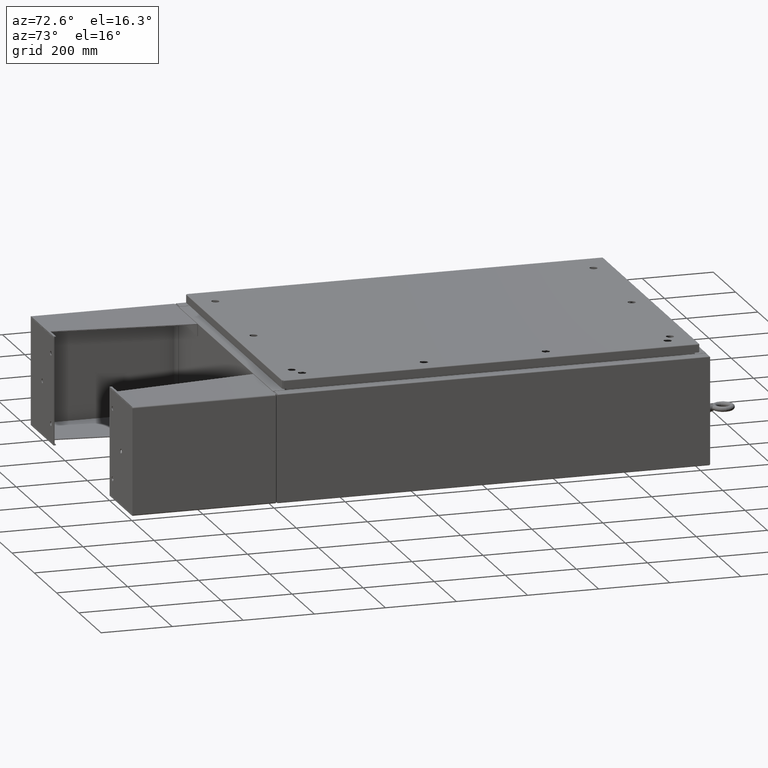
[diagram: clean part render]
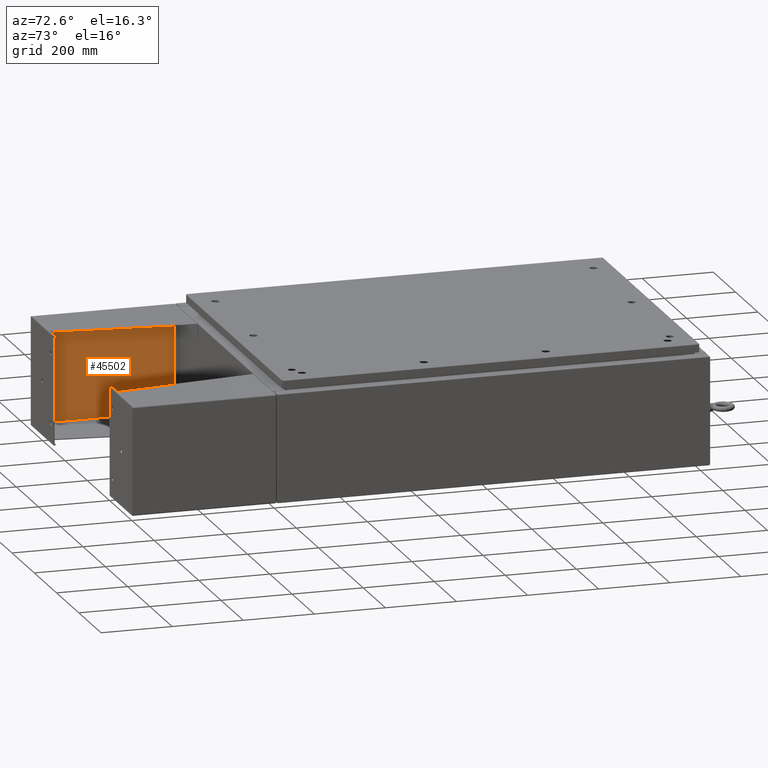
[diagram: same view with one face highlighted and labeled with its STEP entity id]
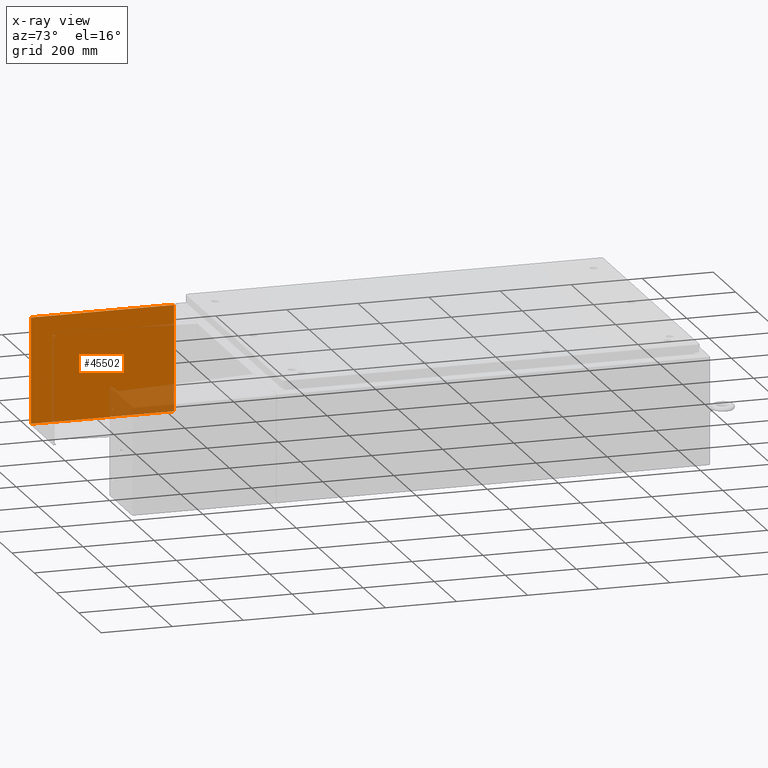
[diagram: x-ray of the same camera — body ghosted, the highlighted face saturated]
A machine part, auxiliary view. The second image highlights one B-rep face of the part: STEP entity #45502.
The next image is the same camera in x-ray: the body ghosted, the highlighted face saturated — about 13% of this face is hidden behind the body in this view.
In plain terms, the highlighted planar face has unit normal (-1, 0, -0).
Its self-contained STEP definition (entity closure, byte-faithful):
#504 = EDGE_CURVE ( 'NONE', #39817, #32584, #41386, .T. ) ;
#2457 = CARTESIAN_POINT ( 'NONE',  ( -5.857000000000000200, 7.857000000000001100, 1.365923996832131600E-016 ) ) ;
#3581 = LINE ( 'NONE', #5422, #46060 ) ;
#3782 = DIRECTION ( 'NONE',  ( -1.000000000000000000, 0.0000000000000000000, -0.0000000000000000000 ) ) ;
#4919 = ORIENTED_EDGE ( 'NONE', *, *, #504, .F. ) ;
#5138 = DIRECTION ( 'NONE',  ( 1.000000000000000000, 0.0000000000000000000, 0.0000000000000000000 ) ) ;
#5422 = CARTESIAN_POINT ( 'NONE',  ( 5.857000000000000200, 8.000000000000001800, 1.365923996832131600E-016 ) ) ;
#6649 = DIRECTION ( 'NONE',  ( 1.000000000000000000, 0.0000000000000000000, 0.0000000000000000000 ) ) ;
#12945 = ORIENTED_EDGE ( 'NONE', *, *, #46240, .T. ) ;
#13559 = AXIS2_PLACEMENT_3D ( 'NONE', #53105, #28477, #3782 ) ;
#14725 = VECTOR ( 'NONE', #5138, 39.37007874015748100 ) ;
#16925 = CARTESIAN_POINT ( 'NONE',  ( -5.857000000000000200, 7.857000000000001100, 1.365923996832131600E-016 ) ) ;
#18243 = VECTOR ( 'NONE', #33989, 39.37007874015748100 ) ;
#23170 = ORIENTED_EDGE ( 'NONE', *, *, #35680, .F. ) ;
#23732 = CARTESIAN_POINT ( 'NONE',  ( 5.857000000000000200, -7.999999999999997300, 1.365923996832131600E-016 ) ) ;
#26989 = VERTEX_POINT ( 'NONE', #41089 ) ;
#28477 = DIRECTION ( 'NONE',  ( 0.0000000000000000000, 0.0000000000000000000, -1.000000000000000000 ) ) ;
#29270 = EDGE_LOOP ( 'NONE', ( #23170, #4919, #12945, #44729 ) ) ;
#29875 = CARTESIAN_POINT ( 'NONE',  ( -6.000000000000000900, -7.999999999999999100, 0.0000000000000000000 ) ) ;
#30305 = FACE_OUTER_BOUND ( 'NONE', #29270, .T. ) ;
#32584 = VERTEX_POINT ( 'NONE', #16925 ) ;
#33229 = VECTOR ( 'NONE', #6649, 39.37007874015748100 ) ;
#33989 = DIRECTION ( 'NONE',  ( -0.0000000000000000000, 1.000000000000000000, -0.0000000000000000000 ) ) ;
#35680 = EDGE_CURVE ( 'NONE', #32584, #26989, #44152, .T. ) ;
#37864 = LINE ( 'NONE', #29875, #14725 ) ;
#39817 = VERTEX_POINT ( 'NONE', #49974 ) ;
#40581 = CARTESIAN_POINT ( 'NONE',  ( -5.857000000000000200, -7.999999999999999100, 1.365923996832131600E-016 ) ) ;
#40659 = PLANE ( 'NONE',  #13559 ) ;
#41089 = CARTESIAN_POINT ( 'NONE',  ( 5.857000000000000200, 7.857000000000001100, 1.365923996832131600E-016 ) ) ;
#41386 = LINE ( 'NONE', #40581, #18243 ) ;
#41908 = EDGE_CURVE ( 'NONE', #26989, #48489, #3581, .T. ) ;
#42458 = DIRECTION ( 'NONE',  ( -0.0000000000000000000, -1.000000000000000000, -0.0000000000000000000 ) ) ;
#44152 = LINE ( 'NONE', #2457, #33229 ) ;
#44729 = ORIENTED_EDGE ( 'NONE', *, *, #41908, .F. ) ;
#45502 = ADVANCED_FACE ( 'NONE', ( #30305 ), #40659, .F. ) ;
#46060 = VECTOR ( 'NONE', #42458, 39.37007874015748100 ) ;
#46240 = EDGE_CURVE ( 'NONE', #39817, #48489, #37864, .T. ) ;
#48489 = VERTEX_POINT ( 'NONE', #23732 ) ;
#49974 = CARTESIAN_POINT ( 'NONE',  ( -5.857000000000000200, -8.000000000000000000, 1.365923996832131600E-016 ) ) ;
#53105 = CARTESIAN_POINT ( 'NONE',  ( 5.999999999999996400, 8.000000000000001800, 0.0000000000000000000 ) ) ;